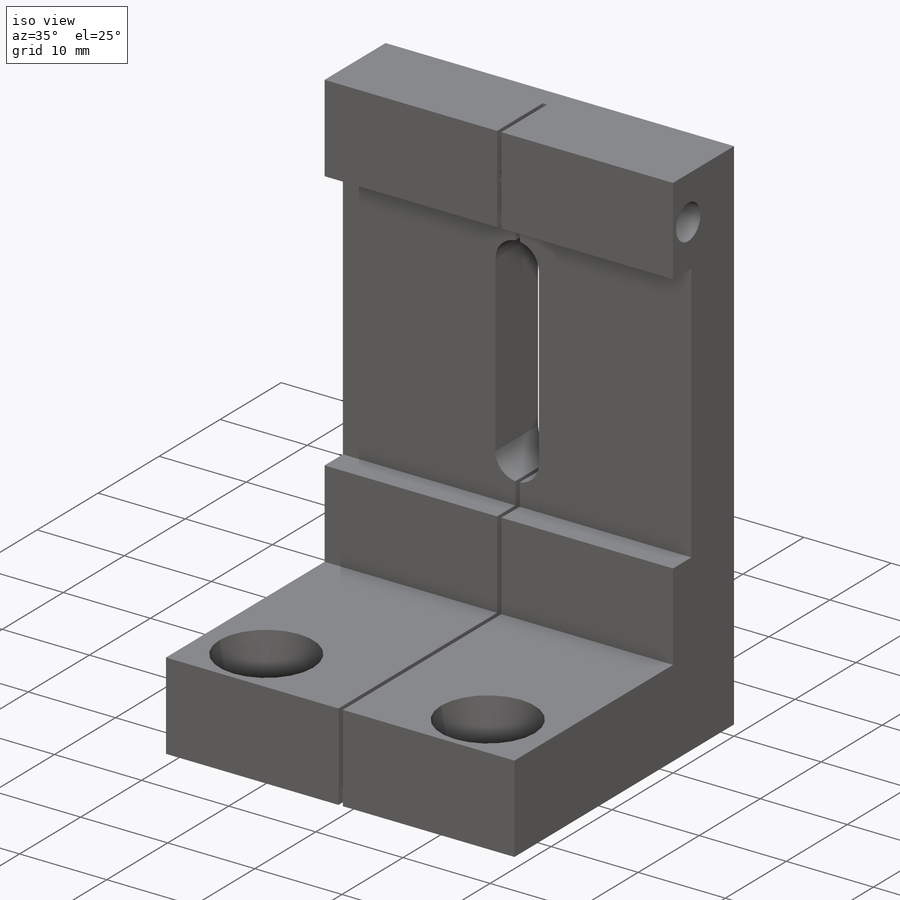
[diagram: iso view]
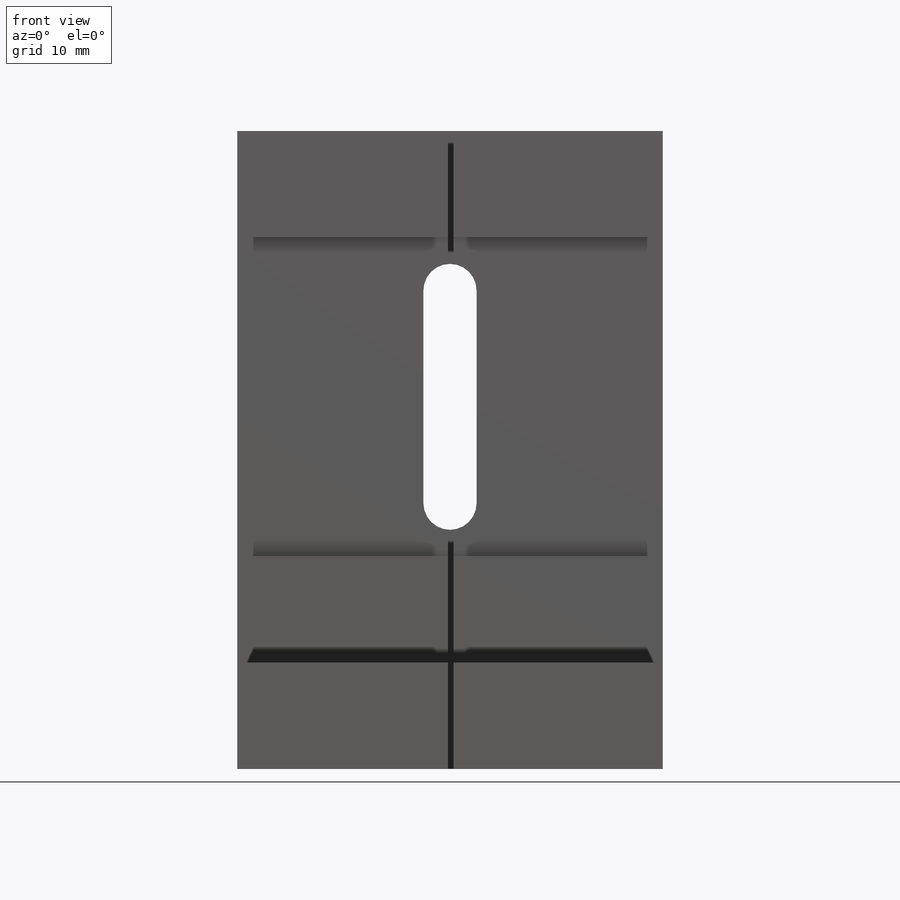
[diagram: front view]
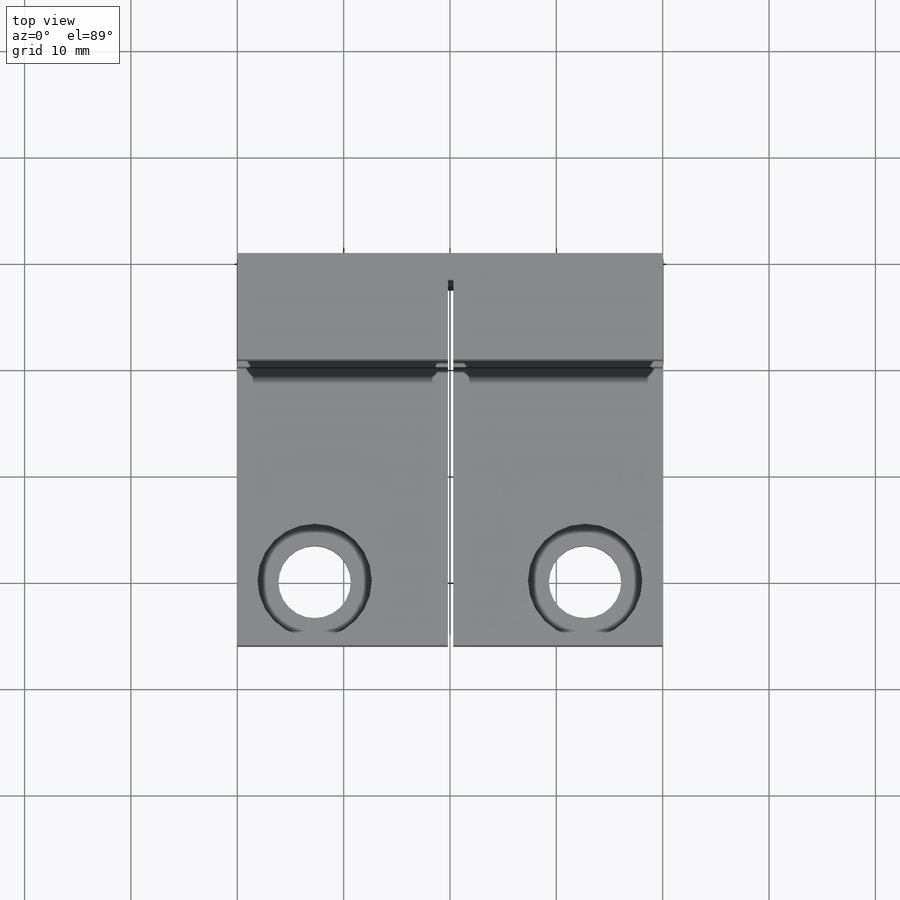
[diagram: top view]
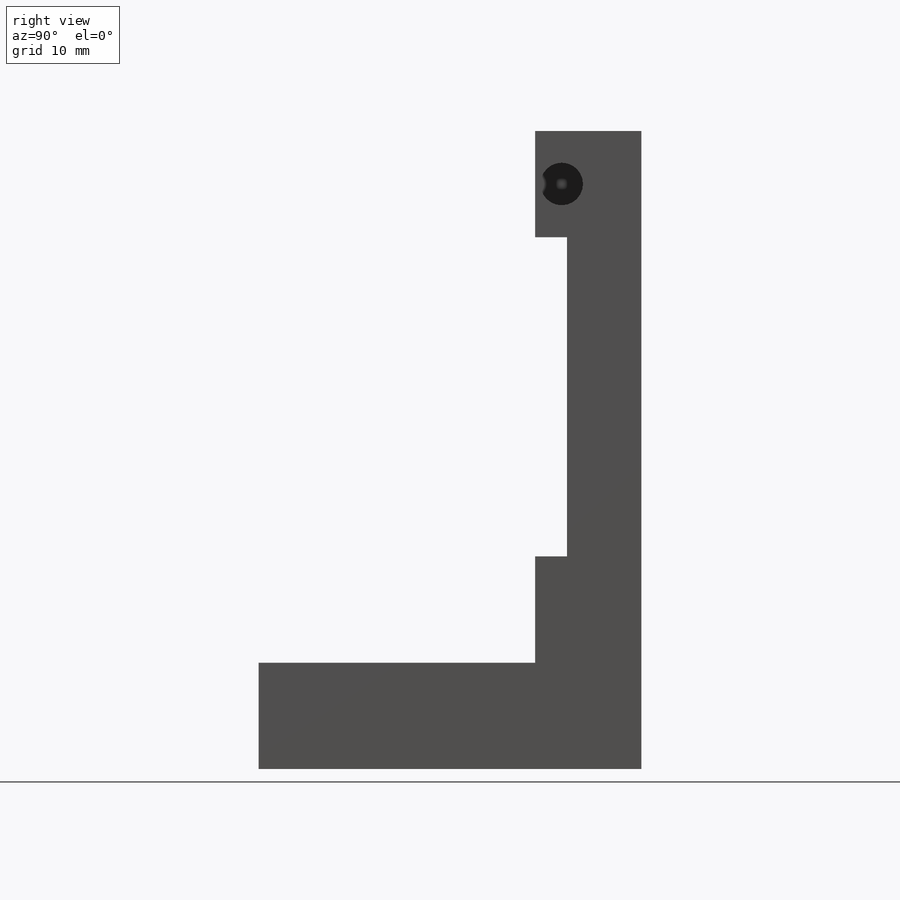
[diagram: right view]
SOLIDWORKS PART (.sldprt)
format: sldprt  version: not decoded by parser v0  size: 368,128 bytes
history: native  units: mm
features: sketch x10, cut_extrude x8, extrude x2, material x1 (+12 scaffold rows collapsed)
feature tree (33):
  scaffold x12  (default folders/planes/origin — collapsed)
  material  "Material <not specified>"
  sketch  "Sketch1"  dims[c1.D1=~94.600309mm c1.D2=~75.378732mm c2.D1=40.0mm c2.D2=60.0mm]
  extrude  "Boss-Extrude1"  Depth=10mm
  sketch  "Sketch2"  dims[c1.D1=5.0mm c1.D2=20.0mm c1.D3=16.7mm c1.D4=35.0mm c2.D3=~4.292332mm]
  cut_extrude  "Cut-Extrude1"  [1 undecoded]
  sketch  "Sketch5"  dims[c1.D1=3.0mm c1.D2=1.5mm c2.D2=120.0deg c2.D3=3.0mm c3.D3=150.0deg c4.D3=30.0mm c5.D3=150.0deg c6.D3=3.0mm c7.D3=150.0deg c8.D3=1.5mm c9.D3=120.0deg c9.D4=30.0mm c9.D5=20.0mm c9.D2=1.5mm]
  cut_extrude  "Cut-Extrude4"  [1 undecoded]
  sketch  "Sketch6"  dims[c1.D1=~4.202637mm c1.D2=40.0mm c2.D1=10.0mm]
  extrude  "Boss-Extrude2"  Depth=26mm
  sketch  "Sketch7"  dims[c1.D1=4.0mm c1.D2=4.0mm c1.D3=10.0mm c1.D4=10.0mm c1.D5=31.7875mm c2.D3=4.125mm]
  cut_extrude  "Cut-Extrude5"  Depth=40mm
  sketch  "Sketch8"  dims[c1.D1=0.5mm c1.D2=~1.454709mm c1.D3=~1.454709mm c2.D3=~29.962265deg c3.D3=0.5mm c3.D4=~1.679115mm c3.D2=2.5mm c4.D4=10.0mm c4.D2=~8.156109mm c5.D4=~1.018599mm c5.D1=~17.670584mm c5.D2=4.0mm c6.D1=0.5mm c6.D2=2.3mm c6.D3=7.5mm]
  cut_extrude  "Cut-Extrude7"  [1 undecoded]
  sketch  "Sketch9"  dims[c1.D1=4.0mm c1.D3=4.0mm c1.D4=4.0mm c1.D2=10.0mm c2.D3=7.3mm c2.D2=25.43mm]
  cut_extrude  "Cut-Extrude9"  Depth=15mm
  sketch  "Sketch10"  dims[D1=4.0mm D2=5.0mm D3=2.5mm]
  cut_extrude  "Cut-Extrude10"  Depth=30mm
  sketch  "Sketch12"  dims[c1.D1=2.64mm c1.D2=2.64mm c1.D3=2.64mm c2.D1=4.98mm c2.D2=6.0mm c2.D3=6.0mm c2.D4=6.0mm c2.D6=6.0mm c2.D7=6.0mm c2.D8=6.0mm c2.D9=6.0mm c2.D10=4.98mm c2.D11=4.98mm c3.D1=6.8mm c3.D4=10.75mm c3.D5=6.8mm c3.D6=10.75mm c3.D7=10.75mm c3.D8=6.8mm c3.D9=6.8mm c4.D5=6.8mm c4.D10=6.8mm c4.D11=6.8mm c4.D12=6.8mm c5.D5=~5.553064mm c5.D8=4.98mm c5.D9=6.8mm c5.D2=4.13mm c5.D3=4.13mm c6.D2=4.0mm c6.D3=4.0mm c6.D6=16.67mm c6.D7=16.67mm c6.D8=4.0mm c6.D9=4.0mm c6.D5=8.0mm c7.D6=7.3mm c7.D7=25.43mm c7.D8=25.4mm c7.D9=25.4mm c7.D5=5.6mm c7.D10=5.6mm c7.D11=6.06mm c7.D12=7.27mm c8.D9=25.43mm c8.D10=25.43mm c8.D2=2.0 c8.D3=2.0 c8.D5=2.0]
  cut_extrude  "Cut-Extrude13"  [1 undecoded]
  sketch  "Sketch14"  dims[c1.D1=10.75mm c1.D3=10.75mm c1.D2=~23.445629mm c2.D3=25.43mm c2.D2=2.0]
  cut_extrude  "Cut-Extrude14"  Depth=6.5mm
decode coverage: 16 of 20 modeling features carry decoded parameters
note: ~ marks probable driven/reference dimensions
note: 4 parameter values undecoded
summary: no parameter record found for 4 features
note: suppression state not decoded; provenance and decode notes live in map.json
